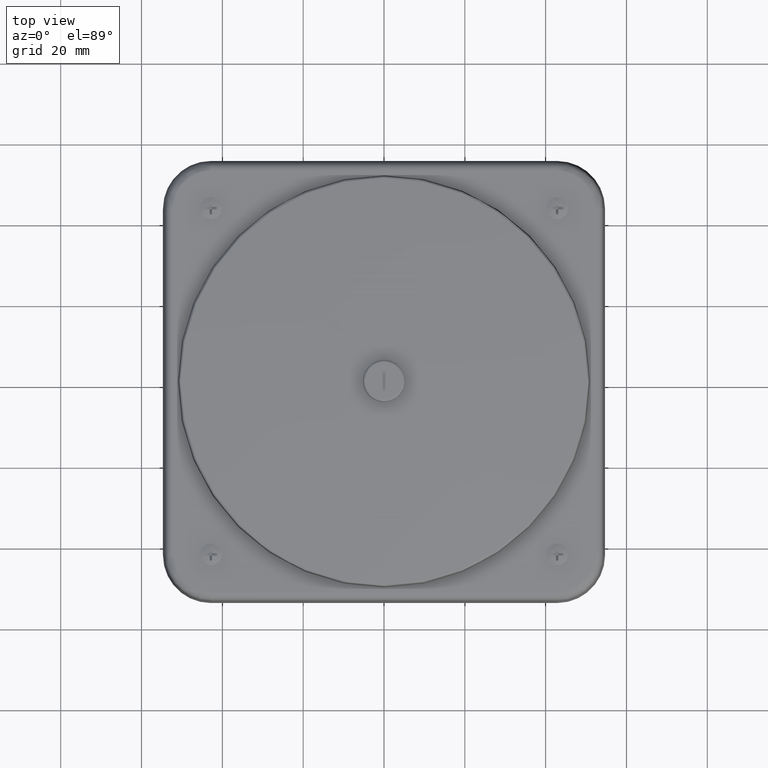
[diagram: clean part render]
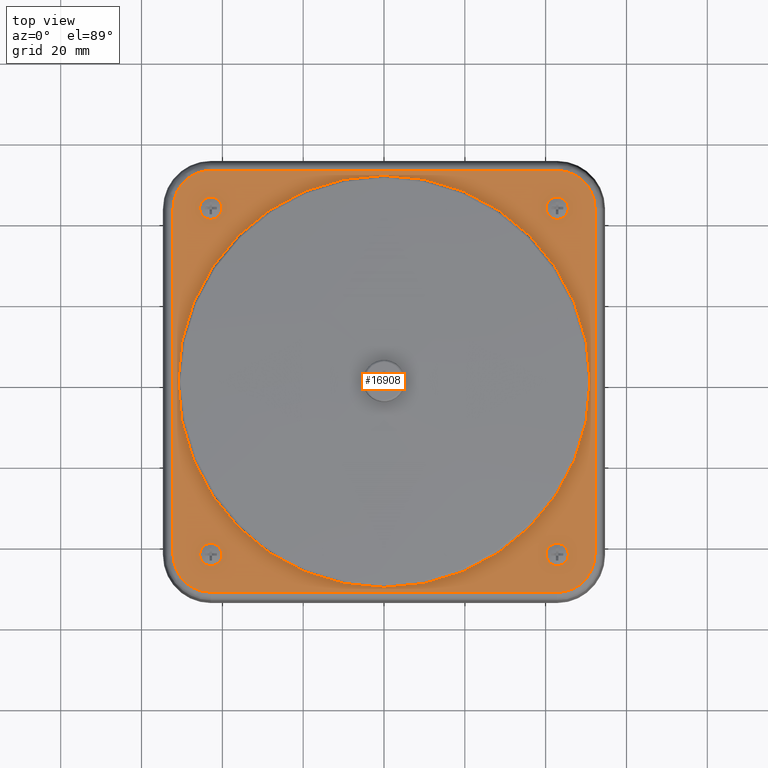
[diagram: same view with one face highlighted and labeled with its STEP entity id]
A machine part, top view. The second image highlights one B-rep face of the part: STEP entity #16908.
In plain terms, the highlighted planar face has unit normal (0, 0, 1).
Its self-contained STEP definition (entity closure, byte-faithful):
#19 = ORIENTED_EDGE ( 'NONE', *, *, #19878, .T. ) ;
#469 = CIRCLE ( 'NONE', #11329, 2.006984957256527480 ) ;
#475 = EDGE_CURVE ( 'NONE', #11099, #21519, #3909, .T. ) ;
#499 = CARTESIAN_POINT ( 'NONE',  ( -2.054926753144984630, 1.902529761494452742, 2.430346456692913382 ) ) ;
#551 = AXIS2_PLACEMENT_3D ( 'NONE', #10924, #10827, #18784 ) ;
#647 = DIRECTION ( 'NONE',  ( 1.000000000000000000, 0.000000000000000000, 0.000000000000000000 ) ) ;
#705 = CIRCLE ( 'NONE', #8072, 0.1082677165354331700 ) ;
#713 = CARTESIAN_POINT ( 'NONE',  ( 1.687007875352732222, -2.054926750809535463, 2.430346456692913382 ) ) ;
#725 = EDGE_CURVE ( 'NONE', #5040, #2065, #5041, .T. ) ;
#769 = ORIENTED_EDGE ( 'NONE', *, *, #21411, .F. ) ;
#791 = CARTESIAN_POINT ( 'NONE',  ( -2.731847993664263613E-15, 2.731847993664263613E-15, 2.430346456692074941 ) ) ;
#888 = ORIENTED_EDGE ( 'NONE', *, *, #13252, .T. ) ;
#889 = CIRCLE ( 'NONE', #16948, 0.1082677165354331700 ) ;
#899 = DIRECTION ( 'NONE',  ( -8.856124801240861388E-26, 1.361170139211503758E-16, -1.000000000000000000 ) ) ;
#1144 = VERTEX_POINT ( 'NONE', #21644 ) ;
#1216 = DIRECTION ( 'NONE',  ( 1.000000000000000000, 0.000000000000000000, 0.000000000000000000 ) ) ;
#1467 = CIRCLE ( 'NONE', #8125, 2.006984957256527480 ) ;
#1883 = VERTEX_POINT ( 'NONE', #15347 ) ;
#1961 = CARTESIAN_POINT ( 'NONE',  ( 2.054926753308295329, -2.153543305749622050, 2.430346456692913382 ) ) ;
#2065 = VERTEX_POINT ( 'NONE', #6251 ) ;
#2088 = DIRECTION ( 'NONE',  ( 1.000000000000000000, 0.000000000000000000, 0.000000000000000000 ) ) ;
#2124 = CARTESIAN_POINT ( 'NONE',  ( 2.054926750669306301, 1.902529764168430892, 2.430346456692913382 ) ) ;
#2192 = DIRECTION ( 'NONE',  ( -6.506258309890710155E-10, 1.000000000000000000, 0.000000000000000000 ) ) ;
#2259 = CARTESIAN_POINT ( 'NONE',  ( 1.687007875113354372, -1.795275589453567022, 2.430346456692913382 ) ) ;
#2675 = CIRCLE ( 'NONE', #14898, 0.1082677165354331700 ) ;
#2757 = EDGE_CURVE ( 'NONE', #1883, #18171, #705, .T. ) ;
#2862 = DIRECTION ( 'NONE',  ( -0.000000000000000000, -0.000000000000000000, -1.000000000000000000 ) ) ;
#3034 = VERTEX_POINT ( 'NONE', #9695 ) ;
#3278 = ORIENTED_EDGE ( 'NONE', *, *, #15296, .T. ) ;
#3411 = ORIENTED_EDGE ( 'NONE', *, *, #2757, .T. ) ;
#3414 = CARTESIAN_POINT ( 'NONE',  ( -2.054926750506000044, -2.153543308423602642, 2.430346456692913382 ) ) ;
#3467 = CARTESIAN_POINT ( 'NONE',  ( -1.687007875352740216, 2.054926750809539460, 2.430346456692913382 ) ) ;
#3538 = CARTESIAN_POINT ( 'NONE',  ( 1.687007875352732222, -2.054926750809535463, 2.430346456692913382 ) ) ;
#3722 = CARTESIAN_POINT ( 'NONE',  ( -1.687007872678763620, -2.054926753004755913, 2.430346456692913382 ) ) ;
#3739 = DIRECTION ( 'NONE',  ( -0.000000000000000000, -0.000000000000000000, -1.000000000000000000 ) ) ;
#3753 = VERTEX_POINT ( 'NONE', #20339 ) ;
#3790 = CARTESIAN_POINT ( 'NONE',  ( 1.687007872678756071, 2.054926753004759910, 2.430346456692913382 ) ) ;
#3901 = AXIS2_PLACEMENT_3D ( 'NONE', #17446, #11017, #17664 ) ;
#3909 = LINE ( 'NONE', #12346, #10182 ) ;
#3983 = ORIENTED_EDGE ( 'NONE', *, *, #17808, .F. ) ;
#5019 = EDGE_CURVE ( 'NONE', #8822, #9985, #1467, .T. ) ;
#5040 = VERTEX_POINT ( 'NONE', #11770 ) ;
#5041 = LINE ( 'NONE', #3414, #17208 ) ;
#5055 = EDGE_LOOP ( 'NONE', ( #5184, #9351, #7541 ) ) ;
#5071 = DIRECTION ( 'NONE',  ( -0.000000000000000000, -0.000000000000000000, -1.000000000000000000 ) ) ;
#5129 = DIRECTION ( 'NONE',  ( 6.506258309890710155E-10, -1.000000000000000000, 0.000000000000000000 ) ) ;
#5148 = CARTESIAN_POINT ( 'NONE',  ( -1.687007872918141693, -1.687007875113354372, 2.430346456692913382 ) ) ;
#5184 = ORIENTED_EDGE ( 'NONE', *, *, #14392, .T. ) ;
#5300 = CARTESIAN_POINT ( 'NONE',  ( 1.902529761494444971, 2.054926753144984630, 2.430346456692913382 ) ) ;
#5372 = DIRECTION ( 'NONE',  ( -0.000000000000000000, -0.000000000000000000, -1.000000000000000000 ) ) ;
#5485 = EDGE_CURVE ( 'NONE', #3034, #10286, #6010, .T. ) ;
#5556 = CARTESIAN_POINT ( 'NONE',  ( -1.902529764168430226, 2.054926750669312963, 2.430346456692913382 ) ) ;
#5807 = CARTESIAN_POINT ( 'NONE',  ( -1.687007875113362143, 1.687007872918141693, 2.430346456692913382 ) ) ;
#5861 = EDGE_LOOP ( 'NONE', ( #6663, #9056 ) ) ;
#5983 = CARTESIAN_POINT ( 'NONE',  ( 1.687007872918133922, 1.687007875113362143, 2.430346456692913382 ) ) ;
#5985 =( BOUNDED_CURVE ( )  B_SPLINE_CURVE ( 3, ( #3790, #5300, #2124, #16998 ),
 .UNSPECIFIED., .F., .F. ) 
 B_SPLINE_CURVE_WITH_KNOTS ( ( 4, 4 ),
 ( 0.000000000000000000, 1.000000000000000000 ),
 .UNSPECIFIED. ) 
 CURVE ( )  GEOMETRIC_REPRESENTATION_ITEM ( )  RATIONAL_B_SPLINE_CURVE ( ( 1.000000000000000000, 0.8047378541243653816, 0.8047378541243653816, 1.000000000000000000 ) ) 
 REPRESENTATION_ITEM ( '' )  );
#6010 = CIRCLE ( 'NONE', #8825, 0.1082677165354331700 ) ;
#6031 = CARTESIAN_POINT ( 'NONE',  ( -3.005032793030688554E-15, 2.458663194297838277E-15, 2.430346456692913382 ) ) ;
#6251 = CARTESIAN_POINT ( 'NONE',  ( -2.054926753004763906, 1.687007872678763620, 2.430346456692913382 ) ) ;
#6332 = CARTESIAN_POINT ( 'NONE',  ( -1.687007872918141693, -1.795275591648787472, 2.430346456692913382 ) ) ;
#6355 = FACE_BOUND ( 'NONE', #5055, .T. ) ;
#6663 = ORIENTED_EDGE ( 'NONE', *, *, #5019, .T. ) ;
#6850 = CARTESIAN_POINT ( 'NONE',  ( 2.054926753004755913, -1.687007872678756071, 2.430346456692913382 ) ) ;
#6932 = EDGE_CURVE ( 'NONE', #17014, #16219, #16615, .T. ) ;
#6993 = EDGE_CURVE ( 'NONE', #18539, #5040, #19091, .T. ) ;
#7051 = DIRECTION ( 'NONE',  ( 1.000000000000000000, 0.000000000000000000, 0.000000000000000000 ) ) ;
#7541 = ORIENTED_EDGE ( 'NONE', *, *, #17807, .T. ) ;
#7870 = CARTESIAN_POINT ( 'NONE',  ( -1.687007875113362143, 1.795275589453575016, 2.430346456692913382 ) ) ;
#8072 = AXIS2_PLACEMENT_3D ( 'NONE', #15912, #19198, #20622 ) ;
#8125 = AXIS2_PLACEMENT_3D ( 'NONE', #8805, #18623, #13616 ) ;
#8145 = EDGE_LOOP ( 'NONE', ( #14767, #769, #9622, #12393, #20244, #13876, #20749, #3983 ) ) ;
#8179 = CARTESIAN_POINT ( 'NONE',  ( -1.687007872678763620, -2.054926753004755913, 2.430346456692913382 ) ) ;
#8469 = EDGE_CURVE ( 'NONE', #3753, #12214, #8857, .T. ) ;
#8693 = EDGE_CURVE ( 'NONE', #9985, #8822, #469, .T. ) ;
#8697 = DIRECTION ( 'NONE',  ( 1.000000000000000000, 0.000000000000000000, 0.000000000000000000 ) ) ;
#8805 = CARTESIAN_POINT ( 'NONE',  ( -2.731847993664263613E-15, 2.731847993664263613E-15, 2.430346456692074941 ) ) ;
#8822 = VERTEX_POINT ( 'NONE', #13170 ) ;
#8825 = AXIS2_PLACEMENT_3D ( 'NONE', #5807, #18821, #15541 ) ;
#8857 = CIRCLE ( 'NONE', #21071, 0.1082677165354331700 ) ;
#8895 = EDGE_CURVE ( 'NONE', #12214, #10475, #9232, .T. ) ;
#9056 = ORIENTED_EDGE ( 'NONE', *, *, #8693, .T. ) ;
#9065 = CARTESIAN_POINT ( 'NONE',  ( -1.687007872918141693, -1.578740158577921049, 2.430346456692913382 ) ) ;
#9071 = CARTESIAN_POINT ( 'NONE',  ( 1.687007875113354372, -1.687007872918133922, 2.430346456692913382 ) ) ;
#9232 = CIRCLE ( 'NONE', #12734, 0.1082677165354331700 ) ;
#9260 = EDGE_LOOP ( 'NONE', ( #20947, #15010, #16769 ) ) ;
#9351 = ORIENTED_EDGE ( 'NONE', *, *, #12654, .T. ) ;
#9489 = CIRCLE ( 'NONE', #3901, 0.1082677165354331700 ) ;
#9622 = ORIENTED_EDGE ( 'NONE', *, *, #725, .F. ) ;
#9636 =( BOUNDED_CURVE ( )  B_SPLINE_CURVE ( 3, ( #17353, #499, #5556, #20648 ),
 .UNSPECIFIED., .F., .F. ) 
 B_SPLINE_CURVE_WITH_KNOTS ( ( 4, 4 ),
 ( 0.000000000000000000, 1.000000000000000000 ),
 .UNSPECIFIED. ) 
 CURVE ( )  GEOMETRIC_REPRESENTATION_ITEM ( )  RATIONAL_B_SPLINE_CURVE ( ( 1.000000000000000000, 0.8047378541243679351, 0.8047378541243679351, 1.000000000000000000 ) ) 
 REPRESENTATION_ITEM ( '' )  );
#9695 = CARTESIAN_POINT ( 'NONE',  ( -1.687007875113362143, 1.578740156382708815, 2.430346456692913382 ) ) ;
#9867 = CARTESIAN_POINT ( 'NONE',  ( 2.054926750809535463, 1.687007875352740216, 2.430346456692913382 ) ) ;
#9985 = VERTEX_POINT ( 'NONE', #10288 ) ;
#9996 = CARTESIAN_POINT ( 'NONE',  ( 1.687007875113354372, -1.687007872918133922, 2.430346456692913382 ) ) ;
#10055 = CARTESIAN_POINT ( 'NONE',  ( -1.578740156382708593, -1.687007875113354372, 2.430346456692913382 ) ) ;
#10182 = VECTOR ( 'NONE', #21044, 39.37007874015748143 ) ;
#10286 = VERTEX_POINT ( 'NONE', #7870 ) ;
#10288 = CARTESIAN_POINT ( 'NONE',  ( -2.486063223280154467E-15, -2.006984957256524815, 2.430346456692074497 ) ) ;
#10348 = DIRECTION ( 'NONE',  ( -0.000000000000000000, -0.000000000000000000, -1.000000000000000000 ) ) ;
#10475 = VERTEX_POINT ( 'NONE', #2259 ) ;
#10708 = DIRECTION ( 'NONE',  ( 1.000000000000000000, 0.000000000000000000, 0.000000000000000000 ) ) ;
#10749 = VERTEX_POINT ( 'NONE', #19725 ) ;
#10755 = VECTOR ( 'NONE', #5129, 39.37007874015748143 ) ;
#10758 = CIRCLE ( 'NONE', #11095, 0.1082677165354331700 ) ;
#10827 = DIRECTION ( 'NONE',  ( -0.000000000000000000, -0.000000000000000000, -1.000000000000000000 ) ) ;
#10924 = CARTESIAN_POINT ( 'NONE',  ( 1.687007872918133922, 1.687007875113362143, 2.430346456692913382 ) ) ;
#11017 = DIRECTION ( 'NONE',  ( -0.000000000000000000, -0.000000000000000000, -1.000000000000000000 ) ) ;
#11095 = AXIS2_PLACEMENT_3D ( 'NONE', #5148, #3739, #647 ) ;
#11099 = VERTEX_POINT ( 'NONE', #3467 ) ;
#11186 = FACE_BOUND ( 'NONE', #17089, .T. ) ;
#11329 = AXIS2_PLACEMENT_3D ( 'NONE', #791, #899, #12538 ) ;
#11358 = DIRECTION ( 'NONE',  ( -0.000000000000000000, -0.000000000000000000, -1.000000000000000000 ) ) ;
#11624 = CARTESIAN_POINT ( 'NONE',  ( 1.687007872918133922, 1.578740158577929042, 2.430346456692913382 ) ) ;
#11657 = CARTESIAN_POINT ( 'NONE',  ( 1.687007875113354372, -1.687007872918133922, 2.430346456692913382 ) ) ;
#11770 = CARTESIAN_POINT ( 'NONE',  ( -2.054926750809539460, -1.687007875352732222, 2.430346456692913382 ) ) ;
#11820 = AXIS2_PLACEMENT_3D ( 'NONE', #6031, #21560, #16619 ) ;
#11981 = CARTESIAN_POINT ( 'NONE',  ( -1.687007872918141693, -1.687007875113354372, 2.430346456692913382 ) ) ;
#12211 = AXIS2_PLACEMENT_3D ( 'NONE', #13856, #10348, #7051 ) ;
#12214 = VERTEX_POINT ( 'NONE', #18135 ) ;
#12230 = CARTESIAN_POINT ( 'NONE',  ( 2.054926753004755913, -1.687007872678756071, 2.430346456692913382 ) ) ;
#12346 = CARTESIAN_POINT ( 'NONE',  ( 1.687007872678756071, 2.054926753004759910, 2.430346456692913382 ) ) ;
#12393 = ORIENTED_EDGE ( 'NONE', *, *, #6993, .F. ) ;
#12538 = DIRECTION ( 'NONE',  ( 0.000000000000000000, 1.000000000000000000, 1.361170139211504745E-16 ) ) ;
#12654 = EDGE_CURVE ( 'NONE', #20280, #16626, #889, .T. ) ;
#12734 = AXIS2_PLACEMENT_3D ( 'NONE', #9996, #5372, #2088 ) ;
#13091 = LINE ( 'NONE', #3538, #14586 ) ;
#13170 = CARTESIAN_POINT ( 'NONE',  ( -2.731847993664263613E-15, 2.006984957256530144, 2.430346456692074941 ) ) ;
#13252 = EDGE_CURVE ( 'NONE', #20110, #1883, #20837, .T. ) ;
#13525 = CIRCLE ( 'NONE', #20852, 0.1082677165354331700 ) ;
#13543 = CARTESIAN_POINT ( 'NONE',  ( 2.054926753144983742, -1.902529761494448968, 2.430346456692913382 ) ) ;
#13616 = DIRECTION ( 'NONE',  ( 0.000000000000000000, 1.000000000000000000, 1.361170139211504745E-16 ) ) ;
#13673 = CARTESIAN_POINT ( 'NONE',  ( -1.902529761494456739, -2.054926753144982410, 2.430346456692913382 ) ) ;
#13856 = CARTESIAN_POINT ( 'NONE',  ( -1.687007872918141693, -1.687007875113354372, 2.430346456692913382 ) ) ;
#13876 = ORIENTED_EDGE ( 'NONE', *, *, #20374, .F. ) ;
#13887 = DIRECTION ( 'NONE',  ( -0.000000000000000000, -0.000000000000000000, -1.000000000000000000 ) ) ;
#14088 = EDGE_CURVE ( 'NONE', #10475, #3753, #13525, .T. ) ;
#14146 = ORIENTED_EDGE ( 'NONE', *, *, #5485, .T. ) ;
#14392 = EDGE_CURVE ( 'NONE', #20495, #20280, #10758, .T. ) ;
#14429 = DIRECTION ( 'NONE',  ( 1.000000000000000000, 0.000000000000000000, 0.000000000000000000 ) ) ;
#14562 = EDGE_LOOP ( 'NONE', ( #3411, #3278, #888 ) ) ;
#14573 = FACE_BOUND ( 'NONE', #14562, .T. ) ;
#14586 = VECTOR ( 'NONE', #21374, 39.37007874015748143 ) ;
#14675 = FACE_BOUND ( 'NONE', #5861, .T. ) ;
#14767 = ORIENTED_EDGE ( 'NONE', *, *, #475, .F. ) ;
#14898 = AXIS2_PLACEMENT_3D ( 'NONE', #5983, #11358, #14429 ) ;
#15010 = ORIENTED_EDGE ( 'NONE', *, *, #8895, .T. ) ;
#15073 = AXIS2_PLACEMENT_3D ( 'NONE', #15888, #2862, #1216 ) ;
#15243 = DIRECTION ( 'NONE',  ( 1.000000000000000000, 0.000000000000000000, 0.000000000000000000 ) ) ;
#15296 = EDGE_CURVE ( 'NONE', #18171, #20110, #2675, .T. ) ;
#15347 = CARTESIAN_POINT ( 'NONE',  ( 1.687007872918133922, 1.795275591648795466, 2.430346456692913382 ) ) ;
#15541 = DIRECTION ( 'NONE',  ( 1.000000000000000000, 0.000000000000000000, 0.000000000000000000 ) ) ;
#15840 = EDGE_CURVE ( 'NONE', #1144, #18539, #13091, .T. ) ;
#15888 = CARTESIAN_POINT ( 'NONE',  ( -1.687007875113362143, 1.687007872918141693, 2.430346456692913382 ) ) ;
#15912 = CARTESIAN_POINT ( 'NONE',  ( 1.687007872918133922, 1.687007875113362143, 2.430346456692913382 ) ) ;
#16219 = VERTEX_POINT ( 'NONE', #12230 ) ;
#16615 = LINE ( 'NONE', #1961, #10755 ) ;
#16619 = DIRECTION ( 'NONE',  ( 1.000000000000000000, 0.000000000000000000, 0.000000000000000000 ) ) ;
#16626 = VERTEX_POINT ( 'NONE', #6332 ) ;
#16769 = ORIENTED_EDGE ( 'NONE', *, *, #14088, .T. ) ;
#16908 = ADVANCED_FACE ( 'NONE', ( #14675, #18043, #21335, #11186, #6355, #14573 ), #21020, .T. ) ;
#16948 = AXIS2_PLACEMENT_3D ( 'NONE', #11981, #5071, #15243 ) ;
#16998 = CARTESIAN_POINT ( 'NONE',  ( 2.054926750809535463, 1.687007875352740216, 2.430346456692913382 ) ) ;
#17014 = VERTEX_POINT ( 'NONE', #9867 ) ;
#17089 = EDGE_LOOP ( 'NONE', ( #19, #17174, #14146 ) ) ;
#17174 = ORIENTED_EDGE ( 'NONE', *, *, #20054, .T. ) ;
#17208 = VECTOR ( 'NONE', #2192, 39.37007874015748143 ) ;
#17353 = CARTESIAN_POINT ( 'NONE',  ( -2.054926753004763906, 1.687007872678763620, 2.430346456692913382 ) ) ;
#17446 = CARTESIAN_POINT ( 'NONE',  ( -1.687007875113362143, 1.687007872918141693, 2.430346456692913382 ) ) ;
#17664 = DIRECTION ( 'NONE',  ( 1.000000000000000000, 0.000000000000000000, 0.000000000000000000 ) ) ;
#17807 = EDGE_CURVE ( 'NONE', #16626, #20495, #21615, .T. ) ;
#17808 = EDGE_CURVE ( 'NONE', #21519, #17014, #5985, .T. ) ;
#18043 = FACE_OUTER_BOUND ( 'NONE', #8145, .T. ) ;
#18135 = CARTESIAN_POINT ( 'NONE',  ( 1.795275591648787472, -1.687007872918133922, 2.430346456692913382 ) ) ;
#18171 = VERTEX_POINT ( 'NONE', #20378 ) ;
#18181 = DIRECTION ( 'NONE',  ( -0.000000000000000000, -0.000000000000000000, -1.000000000000000000 ) ) ;
#18539 = VERTEX_POINT ( 'NONE', #8179 ) ;
#18623 = DIRECTION ( 'NONE',  ( -8.856124801240861388E-26, 1.361170139211503758E-16, -1.000000000000000000 ) ) ;
#18679 = CARTESIAN_POINT ( 'NONE',  ( -2.054926750669319180, -1.902529764168426230, 2.430346456692913382 ) ) ;
#18687 =( BOUNDED_CURVE ( )  B_SPLINE_CURVE ( 3, ( #6850, #13543, #20429, #713 ),
 .UNSPECIFIED., .F., .T. ) 
 B_SPLINE_CURVE_WITH_KNOTS ( ( 4, 4 ),
 ( 0.000000000000000000, 1.000000000000000000 ),
 .UNSPECIFIED. ) 
 CURVE ( )  GEOMETRIC_REPRESENTATION_ITEM ( )  RATIONAL_B_SPLINE_CURVE ( ( 1.000000000000000000, 0.8047378541243640493, 0.8047378541243640493, 1.000000000000000000 ) ) 
 REPRESENTATION_ITEM ( '' )  );
#18784 = DIRECTION ( 'NONE',  ( 1.000000000000000000, 0.000000000000000000, 0.000000000000000000 ) ) ;
#18800 = CARTESIAN_POINT ( 'NONE',  ( -2.054926750809539460, -1.687007875352732222, 2.430346456692913382 ) ) ;
#18821 = DIRECTION ( 'NONE',  ( -0.000000000000000000, -0.000000000000000000, -1.000000000000000000 ) ) ;
#19091 =( BOUNDED_CURVE ( )  B_SPLINE_CURVE ( 3, ( #3722, #13673, #18679, #18800 ),
 .UNSPECIFIED., .F., .F. ) 
 B_SPLINE_CURVE_WITH_KNOTS ( ( 4, 4 ),
 ( 0.000000000000000000, 1.000000000000000000 ),
 .UNSPECIFIED. ) 
 CURVE ( )  GEOMETRIC_REPRESENTATION_ITEM ( )  RATIONAL_B_SPLINE_CURVE ( ( 1.000000000000000000, 0.8047378541243627170, 0.8047378541243627170, 1.000000000000000000 ) ) 
 REPRESENTATION_ITEM ( '' )  );
#19198 = DIRECTION ( 'NONE',  ( -0.000000000000000000, -0.000000000000000000, -1.000000000000000000 ) ) ;
#19725 = CARTESIAN_POINT ( 'NONE',  ( -1.578740158577929042, 1.687007872918141693, 2.430346456692913382 ) ) ;
#19878 = EDGE_CURVE ( 'NONE', #10286, #10749, #9489, .T. ) ;
#19972 = CIRCLE ( 'NONE', #15073, 0.1082677165354331700 ) ;
#20054 = EDGE_CURVE ( 'NONE', #10749, #3034, #19972, .T. ) ;
#20110 = VERTEX_POINT ( 'NONE', #11624 ) ;
#20244 = ORIENTED_EDGE ( 'NONE', *, *, #15840, .F. ) ;
#20280 = VERTEX_POINT ( 'NONE', #10055 ) ;
#20339 = CARTESIAN_POINT ( 'NONE',  ( 1.687007875113354372, -1.578740156382701043, 2.430346456692913382 ) ) ;
#20374 = EDGE_CURVE ( 'NONE', #16219, #1144, #18687, .T. ) ;
#20378 = CARTESIAN_POINT ( 'NONE',  ( 1.795275589453567022, 1.687007875113362143, 2.430346456692913382 ) ) ;
#20429 = CARTESIAN_POINT ( 'NONE',  ( 1.902529764168426230, -2.054926750669313407, 2.430346456692913382 ) ) ;
#20495 = VERTEX_POINT ( 'NONE', #9065 ) ;
#20622 = DIRECTION ( 'NONE',  ( 1.000000000000000000, 0.000000000000000000, 0.000000000000000000 ) ) ;
#20648 = CARTESIAN_POINT ( 'NONE',  ( -1.687007875352740216, 2.054926750809539460, 2.430346456692913382 ) ) ;
#20749 = ORIENTED_EDGE ( 'NONE', *, *, #6932, .F. ) ;
#20837 = CIRCLE ( 'NONE', #551, 0.1082677165354331700 ) ;
#20852 = AXIS2_PLACEMENT_3D ( 'NONE', #11657, #18181, #8697 ) ;
#20947 = ORIENTED_EDGE ( 'NONE', *, *, #8469, .T. ) ;
#20971 = CARTESIAN_POINT ( 'NONE',  ( 1.687007872678756071, 2.054926753004759910, 2.430346456692913382 ) ) ;
#21020 = PLANE ( 'NONE',  #11820 ) ;
#21044 = DIRECTION ( 'NONE',  ( 1.000000000000000000, 6.506258309890710155E-10, 0.000000000000000000 ) ) ;
#21071 = AXIS2_PLACEMENT_3D ( 'NONE', #9071, #13887, #10708 ) ;
#21335 = FACE_BOUND ( 'NONE', #9260, .T. ) ;
#21374 = DIRECTION ( 'NONE',  ( -1.000000000000000000, -6.506258309890710155E-10, 0.000000000000000000 ) ) ;
#21411 = EDGE_CURVE ( 'NONE', #2065, #11099, #9636, .T. ) ;
#21519 = VERTEX_POINT ( 'NONE', #20971 ) ;
#21560 = DIRECTION ( 'NONE',  ( 0.000000000000000000, 0.000000000000000000, 1.000000000000000000 ) ) ;
#21615 = CIRCLE ( 'NONE', #12211, 0.1082677165354331700 ) ;
#21644 = CARTESIAN_POINT ( 'NONE',  ( 1.687007875352732222, -2.054926750809535463, 2.430346456692913382 ) ) ;